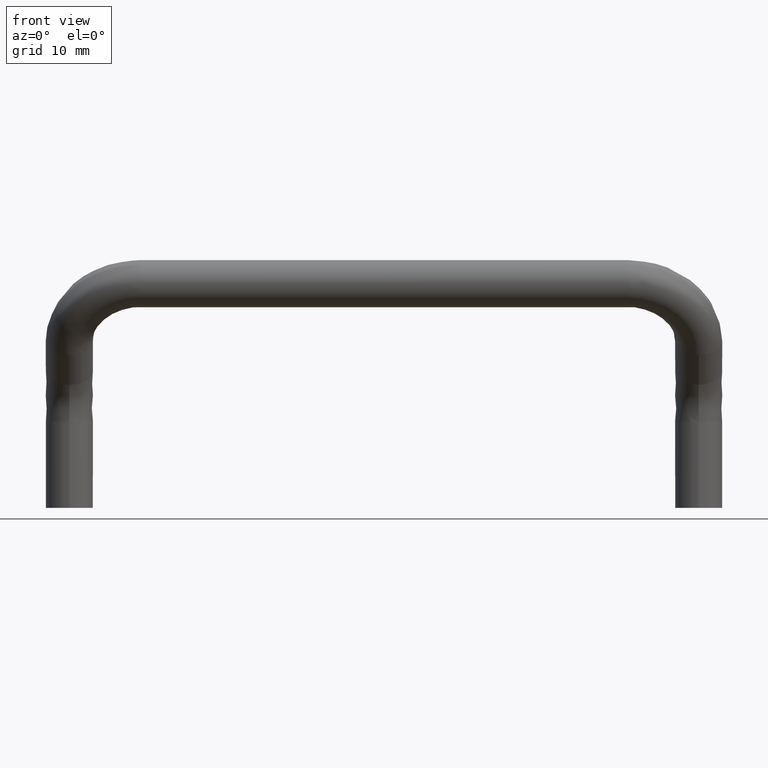
[diagram: clean part render]
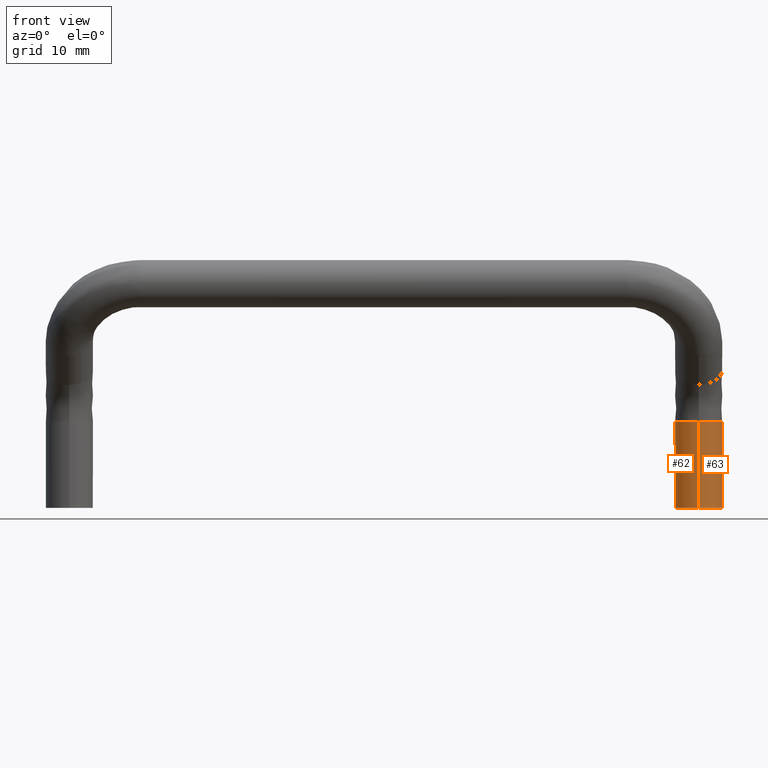
[diagram: same view with one multi-face feature highlighted, each face labeled with its STEP entity id]
A machine part, front view. The highlighted faces form ONE feature: a constant-radius fillet chain: 2 tangent blend faces with common blend radius 3 mm. The faces share edges in the B-rep.
Their STEP definitions:
[1] entity #62 (Cylinder):
#62=ADVANCED_FACE('',(#289),#288,.T.);
#288=CYLINDRICAL_SURFACE('',#591,3.00000000000E+00);
#289=FACE_OUTER_BOUND('',#592,.T.);
#588=CARTESIAN_POINT('',(4.00000000001E+01,9.99999999999E+00,-2.00000000000E+01));
#589=DIRECTION('',(-0.00000000000E+00,3.82427675385E-13,1.00000000000E+00));
#590=DIRECTION('',(1.16473837661E-13,1.00000000000E+00,-3.82427675385E-13));
#591=AXIS2_PLACEMENT_3D('',#588,#589,#590);
#592=EDGE_LOOP('',(#715,#716,#717,#718,#719));
#715=ORIENTED_EDGE('',*,*,#770,.T.);
#716=ORIENTED_EDGE('',*,*,#769,.T.);
#717=ORIENTED_EDGE('',*,*,#793,.F.);
#718=ORIENTED_EDGE('',*,*,#734,.F.);
#719=ORIENTED_EDGE('',*,*,#794,.T.);
#734=EDGE_CURVE('',#797,#798,#799,.T.);
#769=EDGE_CURVE('',#1034,#1035,#1036,.T.);
#770=EDGE_CURVE('',#1042,#1034,#1043,.T.);
#793=EDGE_CURVE('',#798,#1035,#1192,.T.);
#794=EDGE_CURVE('',#797,#1042,#1198,.T.);
#797=VERTEX_POINT('',#1216);
#798=VERTEX_POINT('',#1217);
#799=CIRCLE('',#1221,3.00000000000E+00);
#1034=VERTEX_POINT('',#1373);
#1035=VERTEX_POINT('',#1374);
#1036=CIRCLE('',#1378,3.00000000000E+00);
#1042=VERTEX_POINT('',#1379);
#1043=CIRCLE('',#1383,3.00000000000E+00);
#1192=(BOUNDED_CURVE() B_SPLINE_CURVE(1,(#1469,#1470),.UNSPECIFIED.,.F.,.F.) B_SPLINE_CURVE_WITH_KNOTS((2,2),(8.33333343261E-02,9.16666667006E-01),.UNSPECIFIED.) CURVE() GEOMETRIC_REPRESENTATION_ITEM() RATIONAL_B_SPLINE_CURVE((1.00000000000E+00,1.00000000000E+00)) REPRESENTATION_ITEM('') );
#1198=(BOUNDED_CURVE() B_SPLINE_CURVE(1,(#1471,#1472),.UNSPECIFIED.,.F.,.F.) B_SPLINE_CURVE_WITH_KNOTS((2,2),(8.33333333336E-02,9.16666666666E-01),.UNSPECIFIED.) CURVE() GEOMETRIC_REPRESENTATION_ITEM() RATIONAL_B_SPLINE_CURVE((7.50000000000E-01,7.50000000000E-01)) REPRESENTATION_ITEM('') );
#1216=CARTESIAN_POINT('',(4.00000000001E+01,6.99999999999E+00,-2.55000000000E+01));
#1217=CARTESIAN_POINT('',(4.00000000001E+01,1.30000000000E+01,-2.55000000000E+01));
#1218=CARTESIAN_POINT('',(4.00000000001E+01,9.99999999999E+00,-2.55000000000E+01));
#1219=DIRECTION('',(1.12103877146E-44,5.82645043321E-13,-1.00000000000E+00));
#1220=DIRECTION('',(-0.00000000000E+00,-1.00000000000E+00,-5.82645043321E-13));
#1221=AXIS2_PLACEMENT_3D('',#1218,#1219,#1220);
#1373=CARTESIAN_POINT('',(3.70000000001E+01,1.00000000000E+01,-1.44999999999E+01));
#1374=CARTESIAN_POINT('',(3.99999999996E+01,1.30000000000E+01,-1.44999999999E+01));
#1375=CARTESIAN_POINT('',(4.00000000001E+01,1.00000000000E+01,-1.44999999999E+01));
#1376=DIRECTION('',(3.82217405874E-13,0.00000000000E+00,-1.00000000000E+00));
#1377=DIRECTION('',(-1.00000000000E+00,1.83690953073E-16,-3.82217405874E-13));
#1378=AXIS2_PLACEMENT_3D('',#1375,#1376,#1377);
#1379=CARTESIAN_POINT('',(4.00000000001E+01,7.00000000000E+00,-1.44999999999E+01));
#1380=CARTESIAN_POINT('',(4.00000000001E+01,1.00000000000E+01,-1.44999999999E+01));
#1381=DIRECTION('',(3.82217405874E-13,0.00000000000E+00,-1.00000000000E+00));
#1382=DIRECTION('',(-1.00000000000E+00,1.83690953073E-16,-3.82217405874E-13));
#1383=AXIS2_PLACEMENT_3D('',#1380,#1381,#1382);
#1469=CARTESIAN_POINT('',(4.00000000001E+01,1.30000000000E+01,-2.54999999869E+01));
#1470=CARTESIAN_POINT('',(4.00000000001E+01,1.30000000000E+01,-1.44999999954E+01));
#1471=CARTESIAN_POINT('',(4.00000000001E+01,6.99999999999E+00,-2.55000000000E+01));
#1472=CARTESIAN_POINT('',(4.00000000001E+01,6.99999999999E+00,-1.44999999999E+01));
[2] entity #63 (Cylinder):
#63=ADVANCED_FACE('',(#299),#298,.T.);
#298=CYLINDRICAL_SURFACE('',#596,3.00000000000E+00);
#299=FACE_OUTER_BOUND('',#597,.T.);
#593=CARTESIAN_POINT('',(4.00000000001E+01,9.99999999999E+00,-2.00000000000E+01));
#594=DIRECTION('',(-0.00000000000E+00,3.82427675385E-13,1.00000000000E+00));
#595=DIRECTION('',(1.16473837661E-13,1.00000000000E+00,-3.82427675385E-13));
#596=AXIS2_PLACEMENT_3D('',#593,#594,#595);
#597=EDGE_LOOP('',(#720,#721,#722,#723));
#720=ORIENTED_EDGE('',*,*,#735,.F.);
#721=ORIENTED_EDGE('',*,*,#793,.T.);
#722=ORIENTED_EDGE('',*,*,#775,.T.);
#723=ORIENTED_EDGE('',*,*,#794,.F.);
#735=EDGE_CURVE('',#798,#797,#805,.T.);
#775=EDGE_CURVE('',#1035,#1042,#1075,.T.);
#793=EDGE_CURVE('',#798,#1035,#1192,.T.);
#794=EDGE_CURVE('',#797,#1042,#1198,.T.);
#797=VERTEX_POINT('',#1216);
#798=VERTEX_POINT('',#1217);
#805=CIRCLE('',#1225,3.00000000000E+00);
#1035=VERTEX_POINT('',#1374);
#1042=VERTEX_POINT('',#1379);
#1075=CIRCLE('',#1403,3.00000000000E+00);
#1192=(BOUNDED_CURVE() B_SPLINE_CURVE(1,(#1469,#1470),.UNSPECIFIED.,.F.,.F.) B_SPLINE_CURVE_WITH_KNOTS((2,2),(8.33333343261E-02,9.16666667006E-01),.UNSPECIFIED.) CURVE() GEOMETRIC_REPRESENTATION_ITEM() RATIONAL_B_SPLINE_CURVE((1.00000000000E+00,1.00000000000E+00)) REPRESENTATION_ITEM('') );
#1198=(BOUNDED_CURVE() B_SPLINE_CURVE(1,(#1471,#1472),.UNSPECIFIED.,.F.,.F.) B_SPLINE_CURVE_WITH_KNOTS((2,2),(8.33333333336E-02,9.16666666666E-01),.UNSPECIFIED.) CURVE() GEOMETRIC_REPRESENTATION_ITEM() RATIONAL_B_SPLINE_CURVE((7.50000000000E-01,7.50000000000E-01)) REPRESENTATION_ITEM('') );
#1216=CARTESIAN_POINT('',(4.00000000001E+01,6.99999999999E+00,-2.55000000000E+01));
#1217=CARTESIAN_POINT('',(4.00000000001E+01,1.30000000000E+01,-2.55000000000E+01));
#1222=CARTESIAN_POINT('',(4.00000000001E+01,9.99999999999E+00,-2.55000000000E+01));
#1223=DIRECTION('',(1.12103877146E-44,5.82645043321E-13,-1.00000000000E+00));
#1224=DIRECTION('',(-0.00000000000E+00,-1.00000000000E+00,-5.82645043321E-13));
#1225=AXIS2_PLACEMENT_3D('',#1222,#1223,#1224);
#1374=CARTESIAN_POINT('',(3.99999999996E+01,1.30000000000E+01,-1.44999999999E+01));
#1379=CARTESIAN_POINT('',(4.00000000001E+01,7.00000000000E+00,-1.44999999999E+01));
#1400=CARTESIAN_POINT('',(4.00000000001E+01,1.00000000000E+01,-1.44999999999E+01));
#1401=DIRECTION('',(3.82217405874E-13,0.00000000000E+00,-1.00000000000E+00));
#1402=DIRECTION('',(-1.00000000000E+00,1.83690953073E-16,-3.82217405874E-13));
#1403=AXIS2_PLACEMENT_3D('',#1400,#1401,#1402);
#1469=CARTESIAN_POINT('',(4.00000000001E+01,1.30000000000E+01,-2.54999999869E+01));
#1470=CARTESIAN_POINT('',(4.00000000001E+01,1.30000000000E+01,-1.44999999954E+01));
#1471=CARTESIAN_POINT('',(4.00000000001E+01,6.99999999999E+00,-2.55000000000E+01));
#1472=CARTESIAN_POINT('',(4.00000000001E+01,6.99999999999E+00,-1.44999999999E+01));